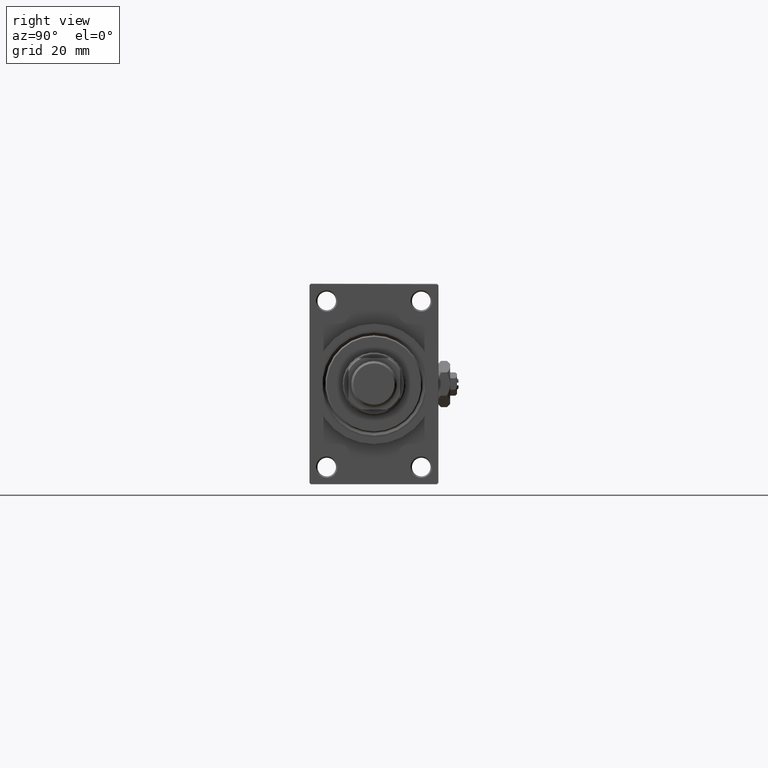
[diagram: clean part render]
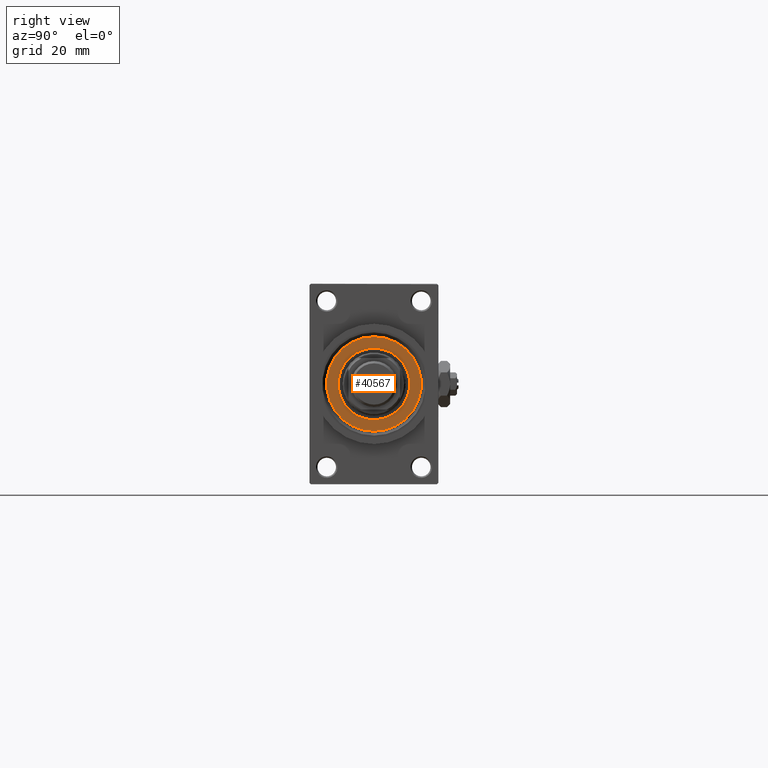
[diagram: same view with one face highlighted and labeled with its STEP entity id]
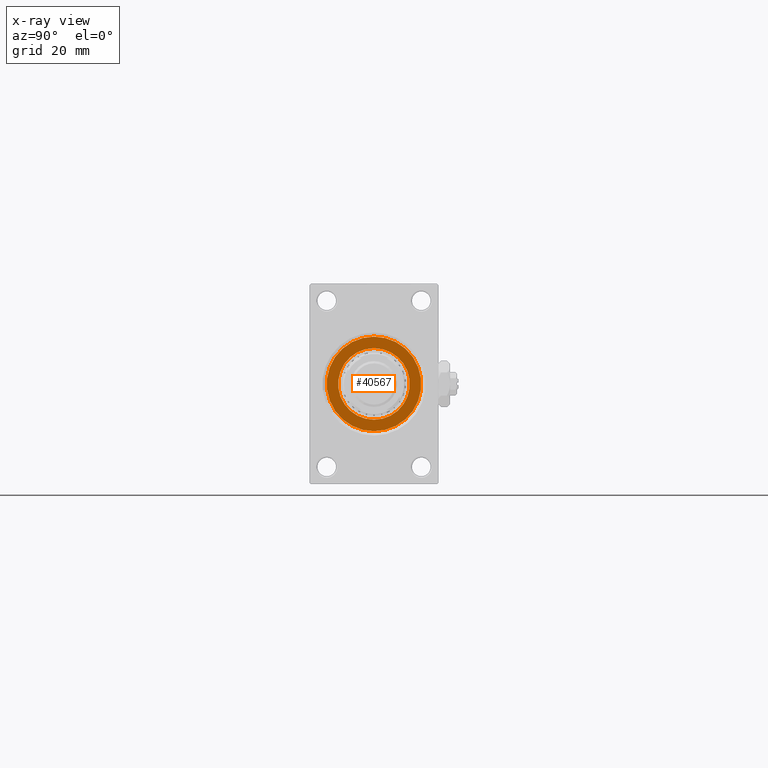
[diagram: x-ray of the same camera — body ghosted, the highlighted face saturated]
A machine part, right view. The second image highlights one B-rep face of the part: STEP entity #40567.
The next image is the same camera in x-ray: the body ghosted, the highlighted face saturated — about 0% of this face is hidden behind the body in this view.
In plain terms, the highlighted planar face has unit normal (1, -0, -0).
Its self-contained STEP definition (entity closure, byte-faithful):
#1075 = AXIS2_PLACEMENT_3D ( 'NONE', #33696, #6805, #40972 ) ;
#3076 = EDGE_CURVE ( 'NONE', #40243, #46816, #46431, .T. ) ;
#3259 = DIRECTION ( 'NONE',  ( 0.000000000000000000, 0.000000000000000000, 1.000000000000000000 ) ) ;
#5184 = CIRCLE ( 'NONE', #1075, 12.50000000000000000 ) ;
#5736 = VERTEX_POINT ( 'NONE', #21476 ) ;
#5824 = VERTEX_POINT ( 'NONE', #26999 ) ;
#6330 = DIRECTION ( 'NONE',  ( 0.000000000000000000, 0.000000000000000000, 1.000000000000000000 ) ) ;
#6805 = DIRECTION ( 'NONE',  ( 0.000000000000000000, 0.000000000000000000, 1.000000000000000000 ) ) ;
#7481 = CIRCLE ( 'NONE', #26853, 16.50000000000001421 ) ;
#10166 = DIRECTION ( 'NONE',  ( 0.000000000000000000, 0.000000000000000000, 1.000000000000000000 ) ) ;
#10933 = ORIENTED_EDGE ( 'NONE', *, *, #28488, .T. ) ;
#12950 = DIRECTION ( 'NONE',  ( 1.000000000000000000, 0.000000000000000000, -0.000000000000000000 ) ) ;
#13546 = AXIS2_PLACEMENT_3D ( 'NONE', #47784, #6330, #13628 ) ;
#13628 = DIRECTION ( 'NONE',  ( 1.000000000000000000, 0.000000000000000000, 0.000000000000000000 ) ) ;
#13876 = EDGE_CURVE ( 'NONE', #46816, #40243, #5184, .T. ) ;
#14435 = EDGE_CURVE ( 'NONE', #5824, #5736, #7481, .T. ) ;
#18756 = CARTESIAN_POINT ( 'NONE',  ( -12.50000000000000000, 1.530808498934191521E-15, 55.26000000000000512 ) ) ;
#20228 = DIRECTION ( 'NONE',  ( 1.000000000000000000, 0.000000000000000000, 0.000000000000000000 ) ) ;
#20970 = DIRECTION ( 'NONE',  ( 0.000000000000000000, 0.000000000000000000, 1.000000000000000000 ) ) ;
#21463 = FACE_BOUND ( 'NONE', #22806, .T. ) ;
#21476 = CARTESIAN_POINT ( 'NONE',  ( -16.50000000000001421, 0.000000000000000000, 55.26000000000000512 ) ) ;
#22806 = EDGE_LOOP ( 'NONE', ( #26179, #30730 ) ) ;
#24983 = CARTESIAN_POINT ( 'NONE',  ( 0.000000000000000000, 0.000000000000000000, 55.26000000000000512 ) ) ;
#26179 = ORIENTED_EDGE ( 'NONE', *, *, #13876, .F. ) ;
#26723 = CARTESIAN_POINT ( 'NONE',  ( 12.50000000000000000, 0.000000000000000000, 55.26000000000000512 ) ) ;
#26853 = AXIS2_PLACEMENT_3D ( 'NONE', #24983, #20970, #20228 ) ;
#26999 = CARTESIAN_POINT ( 'NONE',  ( 16.50000000000001421, 2.051283388571817281E-15, 55.26000000000000512 ) ) ;
#28488 = EDGE_CURVE ( 'NONE', #5736, #5824, #31947, .T. ) ;
#29263 = FACE_OUTER_BOUND ( 'NONE', #32021, .T. ) ;
#30730 = ORIENTED_EDGE ( 'NONE', *, *, #3076, .F. ) ;
#31947 = CIRCLE ( 'NONE', #36733, 16.50000000000001421 ) ;
#32021 = EDGE_LOOP ( 'NONE', ( #10933, #33278 ) ) ;
#33171 = DIRECTION ( 'NONE',  ( 1.000000000000000000, 0.000000000000000000, 0.000000000000000000 ) ) ;
#33278 = ORIENTED_EDGE ( 'NONE', *, *, #14435, .T. ) ;
#33279 = PLANE ( 'NONE',  #49124 ) ;
#33696 = CARTESIAN_POINT ( 'NONE',  ( 0.000000000000000000, 0.000000000000000000, 55.26000000000000512 ) ) ;
#36733 = AXIS2_PLACEMENT_3D ( 'NONE', #37669, #3259, #33171 ) ;
#36793 = CARTESIAN_POINT ( 'NONE',  ( 0.000000000000000000, 0.000000000000000000, 55.26000000000000512 ) ) ;
#37669 = CARTESIAN_POINT ( 'NONE',  ( 0.000000000000000000, 0.000000000000000000, 55.26000000000000512 ) ) ;
#40243 = VERTEX_POINT ( 'NONE', #18756 ) ;
#40567 = ADVANCED_FACE ( 'NONE', ( #21463, #29263 ), #33279, .T. ) ;
#40972 = DIRECTION ( 'NONE',  ( 1.000000000000000000, 0.000000000000000000, 0.000000000000000000 ) ) ;
#46431 = CIRCLE ( 'NONE', #13546, 12.50000000000000000 ) ;
#46816 = VERTEX_POINT ( 'NONE', #26723 ) ;
#47784 = CARTESIAN_POINT ( 'NONE',  ( 0.000000000000000000, 0.000000000000000000, 55.26000000000000512 ) ) ;
#49124 = AXIS2_PLACEMENT_3D ( 'NONE', #36793, #10166, #12950 ) ;